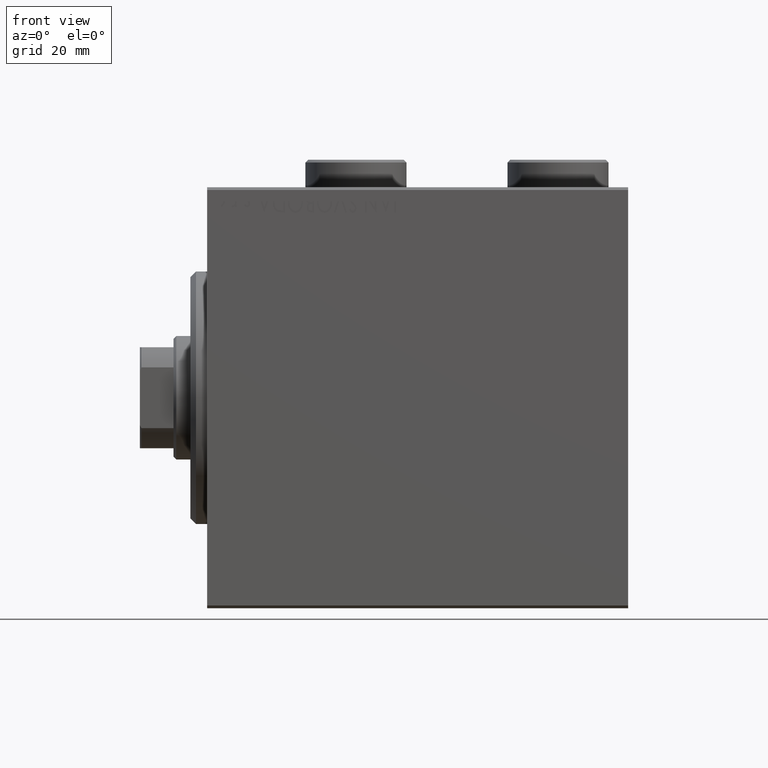
[diagram: clean part render]
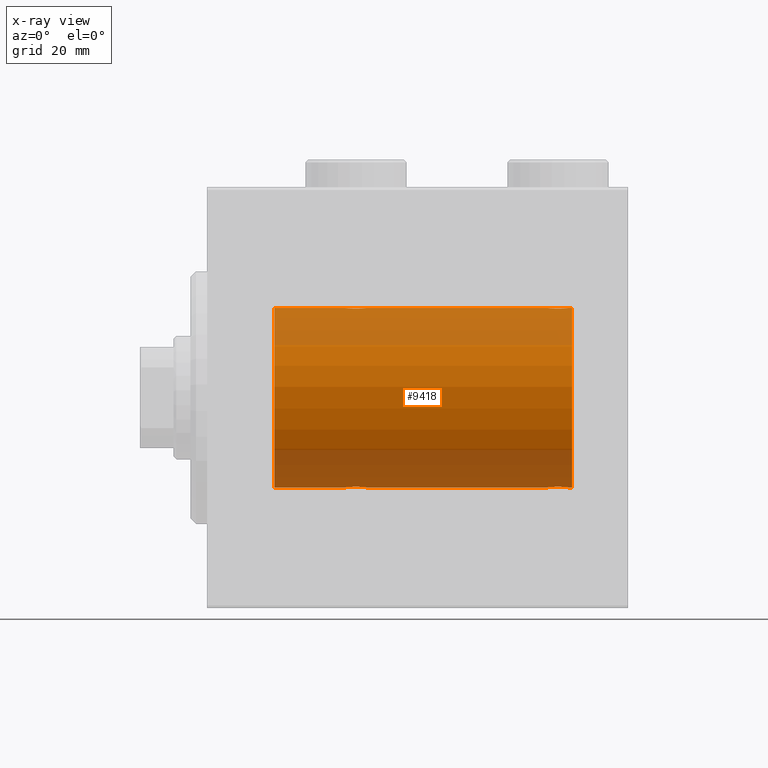
[diagram: x-ray — body ghosted, one internal face saturated and labeled with its STEP entity id]
A machine part, front view, then the same camera in x-ray: the body is ghosted and one INTERNAL B-rep face — a face not visible from any outside direction — is saturated and labeled: STEP entity #9418.
In plain terms, the highlighted cylindrical surface (partial cylindrical patch) has radius 16 mm, axis along (-1, -0, -0).
Its self-contained STEP definition (entity closure, byte-faithful):
#515 = CARTESIAN_POINT ( 'NONE',  ( 28.09938581325380369, -1.228793614424118497, -15.95381972293797013 ) ) ;
#516 = ORIENTED_EDGE ( 'NONE', *, *, #28610, .T. ) ;
#747 = CARTESIAN_POINT ( 'NONE',  ( 24.90236864042801557, -1.231048876942801407, -15.95364199493483426 ) ) ;
#981 = EDGE_LOOP ( 'NONE', ( #35955, #27017, #18083, #23474, #23706, #516, #39022, #20305, #34813, #36272, #8882, #9311 ) ) ;
#1727 = CARTESIAN_POINT ( 'NONE',  ( 60.90236864042802267, -1.231048876942808956, -15.95364199493483426 ) ) ;
#1922 = CARTESIAN_POINT ( 'NONE',  ( 11.99999999999999645, 0.000000000000000000, 0.000000000000000000 ) ) ;
#2407 = CARTESIAN_POINT ( 'NONE',  ( 63.38846140829282660, -1.796613193944156084, -15.89889131367402975 ) ) ;
#2451 = CARTESIAN_POINT ( 'NONE',  ( 60.55248858968734282, -0.5244724041436312767, 15.99321727742821686 ) ) ;
#2942 = VERTEX_POINT ( 'NONE', #18502 ) ;
#3274 = CARTESIAN_POINT ( 'NONE',  ( 25.61153859170720537, -1.796613193944160969, 15.89889131367403685 ) ) ;
#3529 = VERTEX_POINT ( 'NONE', #21605 ) ;
#3623 = CARTESIAN_POINT ( 'NONE',  ( 60.50000000000000711, -2.739595594696790848E-23, 16.00000000000000000 ) ) ;
#4209 = CARTESIAN_POINT ( 'NONE',  ( 24.55325995304361086, -0.5272875822566830406, -15.99312147175148091 ) ) ;
#4231 = DIRECTION ( 'NONE',  ( -1.000000000000000000, -0.000000000000000000, -0.000000000000000000 ) ) ;
#4621 = CYLINDRICAL_SURFACE ( 'NONE', #15061, 16.00000000000000000 ) ;
#4962 = CARTESIAN_POINT ( 'NONE',  ( 64.50000000000000000, -0.2611263091397180713, -16.00000000000000355 ) ) ;
#5386 = LINE ( 'NONE', #8856, #11701 ) ;
#5412 = CARTESIAN_POINT ( 'NONE',  ( 62.76370462878178103, -1.986819684797425767, -15.87618369521983475 ) ) ;
#5455 = CARTESIAN_POINT ( 'NONE',  ( 63.71821872840284584, -1.591545514129670380, 15.92081325887754950 ) ) ;
#5638 = CARTESIAN_POINT ( 'NONE',  ( 63.01937114547926910, -1.935780515549996306, -15.88248768234623221 ) ) ;
#6493 = CARTESIAN_POINT ( 'NONE',  ( 24.55248858968731085, -0.5244724041436337192, 15.99321727742820975 ) ) ;
#6732 = CARTESIAN_POINT ( 'NONE',  ( 27.38592149968496514, -1.797863738508701736, 15.89874935709250892 ) ) ;
#7036 = CARTESIAN_POINT ( 'NONE',  ( 64.24678128854692716, -1.008257970366806422, 15.97001510549667458 ) ) ;
#7186 = CARTESIAN_POINT ( 'NONE',  ( 25.49679215208682592, -1.735114343256370262, 15.90580722143557502 ) ) ;
#7198 = CARTESIAN_POINT ( 'NONE',  ( 28.49999999999999645, 1.959434851238818770E-15, -16.00000000000000000 ) ) ;
#7667 = CARTESIAN_POINT ( 'NONE',  ( 27.14636362870457731, -1.897207606501644550, -15.88720136683946826 ) ) ;
#7857 = AXIS2_PLACEMENT_3D ( 'NONE', #1922, #30679, #29998 ) ;
#7894 = CARTESIAN_POINT ( 'NONE',  ( 26.36919591423421494, -2.000094120337574388, -15.87449600834270669 ) ) ;
#7979 = DIRECTION ( 'NONE',  ( -1.000000000000000000, -0.000000000000000000, -0.000000000000000000 ) ) ;
#8654 = CARTESIAN_POINT ( 'NONE',  ( 61.85623329282659455, -1.898087287925307232, -15.88709570026284545 ) ) ;
#8669 = LINE ( 'NONE', #39775, #22137 ) ;
#8700 = CARTESIAN_POINT ( 'NONE',  ( 62.63080408576578151, -2.000094120337570835, 15.87449600834271024 ) ) ;
#8856 = CARTESIAN_POINT ( 'NONE',  ( 65.00000000000000000, 1.959434878635765131E-15, -16.00000000000000000 ) ) ;
#8882 = ORIENTED_EDGE ( 'NONE', *, *, #15609, .T. ) ;
#8931 = CARTESIAN_POINT ( 'NONE',  ( 63.01664001081051936, -1.936513707523802585, 15.88239801746204805 ) ) ;
#9011 = AXIS2_PLACEMENT_3D ( 'NONE', #19972, #34029, #31005 ) ;
#9311 = ORIENTED_EDGE ( 'NONE', *, *, #24361, .F. ) ;
#9335 = CIRCLE ( 'NONE', #7857, 16.00000000000000000 ) ;
#9418 = ADVANCED_FACE ( 'NONE', ( #42407 ), #4621, .F. ) ;
#9551 = CARTESIAN_POINT ( 'NONE',  ( 60.49999999999999289, -9.573340169032840992E-15, -16.00000000000000000 ) ) ;
#10040 = CARTESIAN_POINT ( 'NONE',  ( 64.49999999999998579, 3.415560487804343463E-15, 16.00000000000000000 ) ) ;
#10654 = CARTESIAN_POINT ( 'NONE',  ( 26.63080408576578861, -2.000094120337581050, 15.87449600834271735 ) ) ;
#10838 = CARTESIAN_POINT ( 'NONE',  ( 65.00000000000000000, 0.000000000000000000, 0.000000000000000000 ) ) ;
#11701 = VECTOR ( 'NONE', #40186, 1000.000000000000000 ) ;
#12226 = CARTESIAN_POINT ( 'NONE',  ( 65.00000000000000000, 0.000000000000000000, 16.00000000000000000 ) ) ;
#12287 = EDGE_CURVE ( 'NONE', #25331, #19443, #45524, .T. ) ;
#12331 = CARTESIAN_POINT ( 'NONE',  ( 63.82304844713207359, -1.505501573616973898, -15.92928245046055302 ) ) ;
#12565 = CARTESIAN_POINT ( 'NONE',  ( 64.50000000000000000, 1.959434851248285101E-15, -16.00000000000000000 ) ) ;
#12611 = CARTESIAN_POINT ( 'NONE',  ( 60.50000000000000711, -2.739595594696790848E-23, 16.00000000000000000 ) ) ;
#12711 = CARTESIAN_POINT ( 'NONE',  ( 28.49999999999999645, 1.959434851238818770E-15, -16.00000000000000000 ) ) ;
#12827 = CARTESIAN_POINT ( 'NONE',  ( 60.75183372993787145, -1.005876079953899493, 15.97016854943969832 ) ) ;
#13075 = B_SPLINE_CURVE_WITH_KNOTS ( 'NONE', 3,
 ( #12611, #34007, #2451, #12827, #36796, #40260, #16498, #40936, #41154, #22948, #33320, #15604, #43945, #8700, #22720, #8931, #26631, #40484, #37015, #5455, #19495, #33545, #7036, #13722, #37693, #10040 ),
 .UNSPECIFIED., .F., .F.,
 ( 4, 2, 2, 2, 2, 2, 2, 2, 2, 2, 2, 2, 4 ),
 ( 0.006259031236593833904, 0.007041222816026886447, 0.007823414395459939857, 0.008214510185176465695, 0.008605605974892991533, 0.008996701764609517371, 0.009387797554326043209, 0.009778893344042589864, 0.01016998913375913652, 0.01056108492347568317, 0.01095218071319222809, 0.01173437229262529191, 0.01251656387205835400 ),
 .UNSPECIFIED. ) ;
#13204 = DIRECTION ( 'NONE',  ( -1.000000000000000000, -0.000000000000000000, -0.000000000000000000 ) ) ;
#13322 = VERTEX_POINT ( 'NONE', #27495 ) ;
#13722 = CARTESIAN_POINT ( 'NONE',  ( 64.44674004695637848, -0.5272875822566772674, 15.99312147175147381 ) ) ;
#13874 = CARTESIAN_POINT ( 'NONE',  ( 27.50078365753405407, -1.736521253711149182, 15.90565326803671375 ) ) ;
#14119 = CIRCLE ( 'NONE', #9011, 16.00000000000000000 ) ;
#14340 = CARTESIAN_POINT ( 'NONE',  ( 25.27971966521589664, -1.589957129871035768, 15.92097237843274549 ) ) ;
#14570 = CARTESIAN_POINT ( 'NONE',  ( 24.50000000000001066, -0.2645044045393414867, -16.00000000000000711 ) ) ;
#14811 = CARTESIAN_POINT ( 'NONE',  ( 25.98335998918948775, -1.936513707523809469, -15.88239801746204805 ) ) ;
#15061 = AXIS2_PLACEMENT_3D ( 'NONE', #10838, #21642, #17739 ) ;
#15220 = LINE ( 'NONE', #12226, #33757 ) ;
#15512 = CARTESIAN_POINT ( 'NONE',  ( 65.00000000000000000, 0.000000000000000000, 16.00000000000000000 ) ) ;
#15604 = CARTESIAN_POINT ( 'NONE',  ( 62.23629537121826871, -1.986819684797415331, 15.87618369521984896 ) ) ;
#15609 = EDGE_CURVE ( 'NONE', #28353, #2942, #13075, .T. ) ;
#15780 = CARTESIAN_POINT ( 'NONE',  ( 64.24816627006210012, -1.005876079953901048, -15.97016854943970188 ) ) ;
#16006 = CARTESIAN_POINT ( 'NONE',  ( 62.23917179650635489, -1.987201773464436716, -15.87613558886576826 ) ) ;
#16241 = CARTESIAN_POINT ( 'NONE',  ( 64.44751141031268560, -0.5244724041436317208, -15.99321727742820620 ) ) ;
#16416 = EDGE_CURVE ( 'NONE', #45064, #25331, #41117, .T. ) ;
#16498 = CARTESIAN_POINT ( 'NONE',  ( 61.27971966521590730, -1.589957129871031549, 15.92097237843274549 ) ) ;
#17092 = CARTESIAN_POINT ( 'NONE',  ( 25.98062885452072734, -1.935780515549995862, 15.88248768234623221 ) ) ;
#17313 = CARTESIAN_POINT ( 'NONE',  ( 26.23629537121825095, -1.986819684797424435, 15.87618369521983475 ) ) ;
#17540 = CARTESIAN_POINT ( 'NONE',  ( 27.14376670717340545, -1.898087287925302125, 15.88709570026284545 ) ) ;
#17553 = CARTESIAN_POINT ( 'NONE',  ( 25.49921634246596369, -1.736521253711144741, -15.90565326803670665 ) ) ;
#17739 = DIRECTION ( 'NONE',  ( 0.000000000000000000, 0.000000000000000000, 1.000000000000000000 ) ) ;
#18083 = ORIENTED_EDGE ( 'NONE', *, *, #16416, .T. ) ;
#18241 = CARTESIAN_POINT ( 'NONE',  ( 24.50000000000000000, -2.745261152005884500E-15, -16.00000000000000000 ) ) ;
#18478 = CARTESIAN_POINT ( 'NONE',  ( 26.23917179650635845, -1.987201773464429833, -15.87613558886576115 ) ) ;
#18502 = CARTESIAN_POINT ( 'NONE',  ( 64.49999999999998579, 3.415560487804343463E-15, 16.00000000000000000 ) ) ;
#18948 = LINE ( 'NONE', #15512, #44780 ) ;
#19121 = EDGE_CURVE ( 'NONE', #45395, #21811, #9335, .T. ) ;
#19232 = CARTESIAN_POINT ( 'NONE',  ( 62.36919591423421849, -2.000094120337583714, -15.87449600834270669 ) ) ;
#19443 = VERTEX_POINT ( 'NONE', #12711 ) ;
#19495 = CARTESIAN_POINT ( 'NONE',  ( 63.82104334803405266, -1.507256214862773058, 15.92911555180482175 ) ) ;
#19673 = CARTESIAN_POINT ( 'NONE',  ( 63.14636362870457020, -1.897207606501650989, -15.88720136683947182 ) ) ;
#19972 = CARTESIAN_POINT ( 'NONE',  ( 65.00000000000000000, 0.000000000000000000, 0.000000000000000000 ) ) ;
#20305 = ORIENTED_EDGE ( 'NONE', *, *, #34920, .F. ) ;
#20425 = B_SPLINE_CURVE_WITH_KNOTS ( 'NONE', 3,
 ( #24678, #34368, #6493, #23984, #38744, #34601, #14340, #7186, #3274, #23765, #17092, #17313, #41988, #10654, #44996, #27447, #17540, #6732, #13874, #42447, #28136, #20541, #31356, #37837, #35050, #31128 ),
 .UNSPECIFIED., .F., .F.,
 ( 4, 2, 2, 2, 2, 2, 2, 2, 2, 2, 2, 2, 4 ),
 ( 0.006259031236593858190, 0.007041222816026928080, 0.007823414395459998838, 0.008214510185176533349, 0.008605605974893067861, 0.008996701764609604107, 0.009387797554326138619, 0.009778893344042673130, 0.01016998913375920938, 0.01056108492347574389, 0.01095218071319227840, 0.01173437229262534048, 0.01251656387205840430 ),
 .UNSPECIFIED. ) ;
#20541 = CARTESIAN_POINT ( 'NONE',  ( 28.09763135957198799, -1.231048876942802961, 15.95364199493483781 ) ) ;
#21166 = EDGE_CURVE ( 'NONE', #25084, #36574, #20425, .T. ) ;
#21233 = CARTESIAN_POINT ( 'NONE',  ( 28.50000000000000000, -0.2611263091397177383, -16.00000000000000000 ) ) ;
#21317 = CARTESIAN_POINT ( 'NONE',  ( 65.00000000000000000, 1.959434878635765131E-15, -16.00000000000000000 ) ) ;
#21470 = CARTESIAN_POINT ( 'NONE',  ( 25.61407850031505262, -1.797863738508699516, -15.89874935709250892 ) ) ;
#21605 = CARTESIAN_POINT ( 'NONE',  ( 65.00000000000000000, 1.959434878635765131E-15, -16.00000000000000000 ) ) ;
#21642 = DIRECTION ( 'NONE',  ( -1.000000000000000000, -0.000000000000000000, -0.000000000000000000 ) ) ;
#21696 = CARTESIAN_POINT ( 'NONE',  ( 27.01937114547927266, -1.935780515549990088, -15.88248768234623221 ) ) ;
#21811 = VERTEX_POINT ( 'NONE', #42283 ) ;
#22137 = VECTOR ( 'NONE', #7979, 1000.000000000000000 ) ;
#22519 = CARTESIAN_POINT ( 'NONE',  ( 24.50000000000000000, -2.739635037742051899E-23, 16.00000000000000000 ) ) ;
#22673 = CARTESIAN_POINT ( 'NONE',  ( 60.49999999999999289, -0.2645044045393447618, -16.00000000000000355 ) ) ;
#22720 = CARTESIAN_POINT ( 'NONE',  ( 62.76082820349364511, -1.987201773464424504, 15.87613558886576115 ) ) ;
#22906 = CARTESIAN_POINT ( 'NONE',  ( 61.61407850031504552, -1.797863738508707510, -15.89874935709250892 ) ) ;
#22948 = CARTESIAN_POINT ( 'NONE',  ( 61.85363637129541559, -1.897207606501642774, 15.88720136683947537 ) ) ;
#23348 = CARTESIAN_POINT ( 'NONE',  ( 61.98335998918948775, -1.936513707523816574, -15.88239801746205515 ) ) ;
#23474 = ORIENTED_EDGE ( 'NONE', *, *, #12287, .T. ) ;
#23706 = ORIENTED_EDGE ( 'NONE', *, *, #29676, .T. ) ;
#23765 = CARTESIAN_POINT ( 'NONE',  ( 25.85363637129542624, -1.897207606501653432, 15.88720136683947182 ) ) ;
#23984 = CARTESIAN_POINT ( 'NONE',  ( 24.75183372993787856, -1.005876079953904600, 15.97016854943970543 ) ) ;
#24077 = CARTESIAN_POINT ( 'NONE',  ( 65.00000000000000000, 0.000000000000000000, 16.00000000000000000 ) ) ;
#24361 = EDGE_CURVE ( 'NONE', #33598, #2942, #18948, .T. ) ;
#24461 = CARTESIAN_POINT ( 'NONE',  ( 25.28178127159715416, -1.591545514129671046, -15.92081325887754950 ) ) ;
#24678 = CARTESIAN_POINT ( 'NONE',  ( 24.50000000000000000, -2.739635037742051899E-23, 16.00000000000000000 ) ) ;
#25084 = VERTEX_POINT ( 'NONE', #22519 ) ;
#25155 = CARTESIAN_POINT ( 'NONE',  ( 24.75321871145306574, -1.008257970366812195, -15.97001510549667458 ) ) ;
#25331 = VERTEX_POINT ( 'NONE', #43712 ) ;
#25570 = DIRECTION ( 'NONE',  ( -1.000000000000000000, -0.000000000000000000, -0.000000000000000000 ) ) ;
#26586 = CARTESIAN_POINT ( 'NONE',  ( 62.63366663175617788, -1.999904855391111846, -15.87451985347842331 ) ) ;
#26631 = CARTESIAN_POINT ( 'NONE',  ( 63.14376670717340545, -1.898087287925291466, 15.88709570026284190 ) ) ;
#27017 = ORIENTED_EDGE ( 'NONE', *, *, #41812, .T. ) ;
#27166 = CARTESIAN_POINT ( 'NONE',  ( 28.49999999999999645, -1.207828523974853969E-15, 16.00000000000000000 ) ) ;
#27447 = CARTESIAN_POINT ( 'NONE',  ( 27.01664001081050515, -1.936513707523814354, 15.88239801746204805 ) ) ;
#27495 = CARTESIAN_POINT ( 'NONE',  ( 24.50000000000000000, -2.745261152005884500E-15, -16.00000000000000000 ) ) ;
#28136 = CARTESIAN_POINT ( 'NONE',  ( 27.82104334803405266, -1.507256214862787713, 15.92911555180482530 ) ) ;
#28353 = VERTEX_POINT ( 'NONE', #3623 ) ;
#28371 = CARTESIAN_POINT ( 'NONE',  ( 26.76370462878175971, -1.986819684797417995, -15.87618369521984185 ) ) ;
#28610 = EDGE_CURVE ( 'NONE', #13322, #45395, #5386, .T. ) ;
#29676 = EDGE_CURVE ( 'NONE', #19443, #13322, #36252, .T. ) ;
#29804 = CARTESIAN_POINT ( 'NONE',  ( 63.72028033478409270, -1.589957129871035546, -15.92097237843274549 ) ) ;
#29998 = DIRECTION ( 'NONE',  ( 0.000000000000000000, 0.000000000000000000, 1.000000000000000000 ) ) ;
#30483 = CARTESIAN_POINT ( 'NONE',  ( 60.75321871145306574, -1.008257970366820189, -15.97001510549667813 ) ) ;
#30679 = DIRECTION ( 'NONE',  ( -1.000000000000000000, 0.000000000000000000, 0.000000000000000000 ) ) ;
#31005 = DIRECTION ( 'NONE',  ( 0.000000000000000000, 0.000000000000000000, 1.000000000000000000 ) ) ;
#31128 = CARTESIAN_POINT ( 'NONE',  ( 28.49999999999999645, -1.207828523974853969E-15, 16.00000000000000000 ) ) ;
#31356 = CARTESIAN_POINT ( 'NONE',  ( 28.24678128854693426, -1.008257970366811751, 15.97001510549667103 ) ) ;
#31830 = CARTESIAN_POINT ( 'NONE',  ( 26.63366663175618854, -1.999904855391105851, -15.87451985347842687 ) ) ;
#32286 = CARTESIAN_POINT ( 'NONE',  ( 28.44751141031269626, -0.5244724041436300555, -15.99321727742820975 ) ) ;
#33047 = CARTESIAN_POINT ( 'NONE',  ( 64.09938581325380369, -1.228793614424120051, -15.95381972293796480 ) ) ;
#33320 = CARTESIAN_POINT ( 'NONE',  ( 61.98062885452072379, -1.935780515549986980, 15.88248768234623576 ) ) ;
#33545 = CARTESIAN_POINT ( 'NONE',  ( 64.09763135957199154, -1.231048876942787196, 15.95364199493483781 ) ) ;
#33598 = VERTEX_POINT ( 'NONE', #24077 ) ;
#33757 = VECTOR ( 'NONE', #25570, 1000.000000000000000 ) ;
#34007 = CARTESIAN_POINT ( 'NONE',  ( 60.50000000000000711, -0.2611263091397199587, 16.00000000000000000 ) ) ;
#34029 = DIRECTION ( 'NONE',  ( -1.000000000000000000, 0.000000000000000000, 0.000000000000000000 ) ) ;
#34154 = LINE ( 'NONE', #44766, #41217 ) ;
#34368 = CARTESIAN_POINT ( 'NONE',  ( 24.50000000000000355, -0.2611263091397209579, 16.00000000000000000 ) ) ;
#34601 = CARTESIAN_POINT ( 'NONE',  ( 25.17695155286792286, -1.505501573616977673, 15.92928245046054947 ) ) ;
#34813 = ORIENTED_EDGE ( 'NONE', *, *, #21166, .T. ) ;
#34920 = EDGE_CURVE ( 'NONE', #25084, #21811, #8669, .T. ) ;
#35050 = CARTESIAN_POINT ( 'NONE',  ( 28.49999999999999289, -0.2645044045393371013, 16.00000000000000000 ) ) ;
#35065 = CARTESIAN_POINT ( 'NONE',  ( 27.72028033478411757, -1.589957129871027330, -15.92097237843274904 ) ) ;
#35293 = CARTESIAN_POINT ( 'NONE',  ( 27.50320784791318118, -1.735114343256362712, -15.90580722143558212 ) ) ;
#35524 = CARTESIAN_POINT ( 'NONE',  ( 25.17895665196595445, -1.507256214862784383, -15.92911555180481820 ) ) ;
#35955 = ORIENTED_EDGE ( 'NONE', *, *, #37671, .F. ) ;
#35986 = CARTESIAN_POINT ( 'NONE',  ( 27.38846140829281595, -1.796613193944150755, -15.89889131367402975 ) ) ;
#36252 = B_SPLINE_CURVE_WITH_KNOTS ( 'NONE', 3,
 ( #7198, #21233, #32286, #42693, #515, #42003, #35065, #35293, #35986, #7667, #21696, #28371, #31830, #7894, #18478, #14811, #42458, #21470, #17553, #24461, #35524, #747, #25155, #4209, #14570, #18241 ),
 .UNSPECIFIED., .F., .F.,
 ( 4, 2, 2, 2, 2, 2, 2, 2, 2, 2, 2, 2, 4 ),
 ( 0.006259031236593879007, 0.007041222816026946295, 0.007823414395460014450, 0.008214510185176547227, 0.008605605974893081739, 0.008996701764609614516, 0.009387797554326147292, 0.009778893344042681804, 0.01016998913375921632, 0.01056108492347574909, 0.01095218071319228187, 0.01173437229262534742, 0.01251656387205841471 ),
 .UNSPECIFIED. ) ;
#36272 = ORIENTED_EDGE ( 'NONE', *, *, #44071, .F. ) ;
#36401 = VECTOR ( 'NONE', #42531, 1000.000000000000000 ) ;
#36574 = VERTEX_POINT ( 'NONE', #27166 ) ;
#36796 = CARTESIAN_POINT ( 'NONE',  ( 60.90061418674617499, -1.228793614424115166, 15.95381972293796835 ) ) ;
#36973 = CARTESIAN_POINT ( 'NONE',  ( 61.49921634246595659, -1.736521253711153845, -15.90565326803670665 ) ) ;
#37015 = CARTESIAN_POINT ( 'NONE',  ( 63.50078365753401499, -1.736521253711142521, 15.90565326803670665 ) ) ;
#37416 = CARTESIAN_POINT ( 'NONE',  ( 61.28178127159713284, -1.591545514129680150, -15.92081325887754417 ) ) ;
#37671 = EDGE_CURVE ( 'NONE', #3529, #33598, #14119, .T. ) ;
#37693 = CARTESIAN_POINT ( 'NONE',  ( 64.50000000000002842, -0.2645044045393374899, 16.00000000000000711 ) ) ;
#37837 = CARTESIAN_POINT ( 'NONE',  ( 28.44674004695639624, -0.5272875822566815973, 15.99312147175146670 ) ) ;
#38744 = CARTESIAN_POINT ( 'NONE',  ( 24.90061418674620342, -1.228793614424124714, 15.95381972293797368 ) ) ;
#39022 = ORIENTED_EDGE ( 'NONE', *, *, #19121, .T. ) ;
#39775 = CARTESIAN_POINT ( 'NONE',  ( 65.00000000000000000, 0.000000000000000000, 16.00000000000000000 ) ) ;
#40186 = DIRECTION ( 'NONE',  ( -1.000000000000000000, -0.000000000000000000, -0.000000000000000000 ) ) ;
#40260 = CARTESIAN_POINT ( 'NONE',  ( 61.17695155286794062, -1.505501573616968791, 15.92928245046055302 ) ) ;
#40484 = CARTESIAN_POINT ( 'NONE',  ( 63.38592149968495448, -1.797863738508690190, 15.89874935709250181 ) ) ;
#40892 = CARTESIAN_POINT ( 'NONE',  ( 61.17895665196596156, -1.507256214862792820, -15.92911555180481820 ) ) ;
#40936 = CARTESIAN_POINT ( 'NONE',  ( 61.49679215208682592, -1.735114343256364711, 15.90580722143557502 ) ) ;
#41117 = B_SPLINE_CURVE_WITH_KNOTS ( 'NONE', 3,
 ( #12565, #4962, #16241, #15780, #33047, #12331, #29804, #44361, #2407, #19673, #5638, #5412, #26586, #19232, #16006, #23348, #8654, #22906, #36973, #37416, #40892, #1727, #30483, #43902, #22673, #9551 ),
 .UNSPECIFIED., .F., .F.,
 ( 4, 2, 2, 2, 2, 2, 2, 2, 2, 2, 2, 2, 4 ),
 ( 0.006259031236593884211, 0.007041222816026949764, 0.007823414395460014450, 0.008214510185176547227, 0.008605605974893080004, 0.008996701764609611046, 0.009387797554326143823, 0.009778893344042676600, 0.01016998913375920938, 0.01056108492347574042, 0.01095218071319227146, 0.01173437229262535089, 0.01251656387205843032 ),
 .UNSPECIFIED. ) ;
#41154 = CARTESIAN_POINT ( 'NONE',  ( 61.61153859170720182, -1.796613193944150311, 15.89889131367403685 ) ) ;
#41217 = VECTOR ( 'NONE', #13204, 1000.000000000000000 ) ;
#41454 = CARTESIAN_POINT ( 'NONE',  ( 64.50000000000000000, 1.959434851248285101E-15, -16.00000000000000000 ) ) ;
#41624 = CARTESIAN_POINT ( 'NONE',  ( 11.99999999999999645, 1.959434878635765131E-15, -16.00000000000000000 ) ) ;
#41812 = EDGE_CURVE ( 'NONE', #3529, #45064, #34154, .T. ) ;
#41988 = CARTESIAN_POINT ( 'NONE',  ( 26.36633336824380436, -1.999904855391111402, 15.87451985347842687 ) ) ;
#42003 = CARTESIAN_POINT ( 'NONE',  ( 27.82304844713206293, -1.505501573616970568, -15.92928245046054769 ) ) ;
#42283 = CARTESIAN_POINT ( 'NONE',  ( 11.99999999999999645, 0.000000000000000000, 16.00000000000000000 ) ) ;
#42407 = FACE_OUTER_BOUND ( 'NONE', #981, .T. ) ;
#42447 = CARTESIAN_POINT ( 'NONE',  ( 27.71821872840285295, -1.591545514129674821, 15.92081325887754595 ) ) ;
#42458 = CARTESIAN_POINT ( 'NONE',  ( 25.85623329282659455, -1.898087287925299016, -15.88709570026284545 ) ) ;
#42531 = DIRECTION ( 'NONE',  ( -1.000000000000000000, -0.000000000000000000, -0.000000000000000000 ) ) ;
#42693 = CARTESIAN_POINT ( 'NONE',  ( 28.24816627006210368, -1.005876079953898605, -15.97016854943969832 ) ) ;
#43712 = CARTESIAN_POINT ( 'NONE',  ( 60.49999999999999289, -9.573340169032840992E-15, -16.00000000000000000 ) ) ;
#43902 = CARTESIAN_POINT ( 'NONE',  ( 60.55325995304358599, -0.5272875822566914783, -15.99312147175147025 ) ) ;
#43945 = CARTESIAN_POINT ( 'NONE',  ( 62.36633336824382212, -1.999904855391102743, 15.87451985347842687 ) ) ;
#44071 = EDGE_CURVE ( 'NONE', #28353, #36574, #15220, .T. ) ;
#44361 = CARTESIAN_POINT ( 'NONE',  ( 63.50320784791315987, -1.735114343256370040, -15.90580722143557502 ) ) ;
#44766 = CARTESIAN_POINT ( 'NONE',  ( 65.00000000000000000, 1.959434878635765131E-15, -16.00000000000000000 ) ) ;
#44780 = VECTOR ( 'NONE', #4231, 1000.000000000000000 ) ;
#44996 = CARTESIAN_POINT ( 'NONE',  ( 26.76082820349364866, -1.987201773464435828, 15.87613558886576470 ) ) ;
#45064 = VERTEX_POINT ( 'NONE', #41454 ) ;
#45395 = VERTEX_POINT ( 'NONE', #41624 ) ;
#45524 = LINE ( 'NONE', #21317, #36401 ) ;